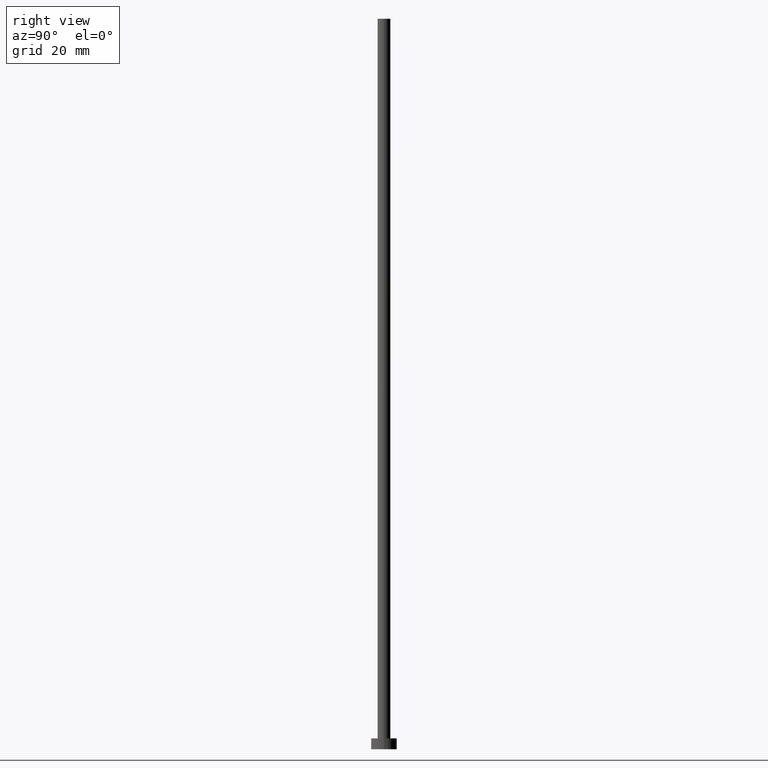
[diagram: clean part render]
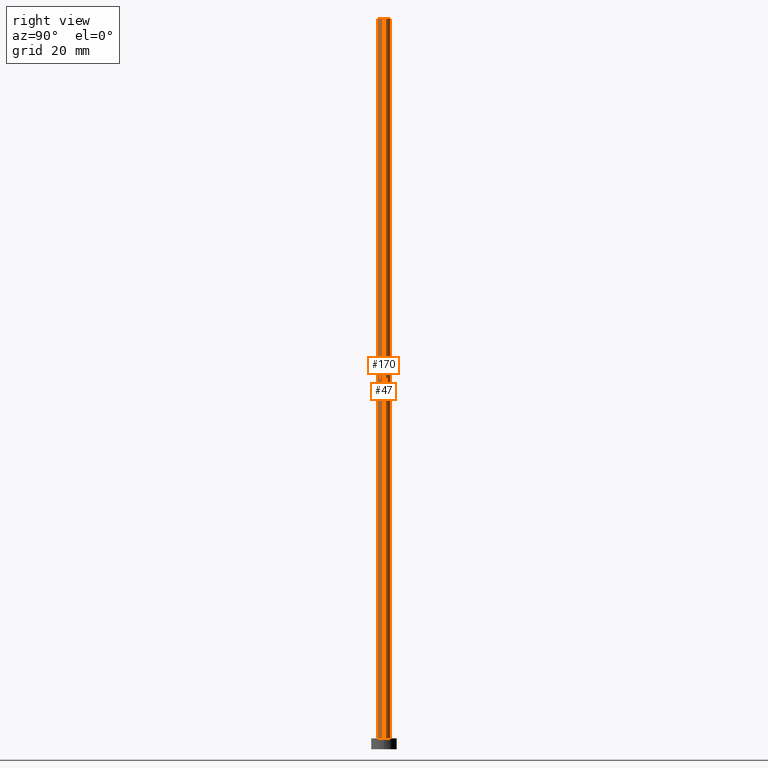
[diagram: same view with one multi-face feature highlighted, each face labeled with its STEP entity id]
A machine part, right view. The highlighted faces form ONE feature: a constant-radius fillet chain: 2 tangent blend faces with common blend radius 1.75 mm. The faces share edges in the B-rep.
Their STEP definitions:
[1] entity #170 (Cylinder):
#10 = ORIENTED_EDGE ( 'NONE', *, *, #207, .T. ) ;
#11 = VECTOR ( 'NONE', #69, 1000.000000000000000 ) ;
#23 = EDGE_CURVE ( 'NONE', #82, #142, #133, .T. ) ;
#32 = ORIENTED_EDGE ( 'NONE', *, *, #23, .T. ) ;
#33 = VERTEX_POINT ( 'NONE', #176 ) ;
#37 = CARTESIAN_POINT ( 'NONE',  ( 1.750000000000000000, 2.143131898507868297E-16, 200.0000000000000000 ) ) ;
#39 = DIRECTION ( 'NONE',  ( -1.000000000000000000, 0.000000000000000000, 0.000000000000000000 ) ) ;
#41 = CIRCLE ( 'NONE', #201, 1.750000000000000000 ) ;
#53 = DIRECTION ( 'NONE',  ( 0.000000000000000000, 0.000000000000000000, 1.000000000000000000 ) ) ;
#54 = LINE ( 'NONE', #110, #11 ) ;
#63 = ORIENTED_EDGE ( 'NONE', *, *, #175, .F. ) ;
#69 = DIRECTION ( 'NONE',  ( -0.000000000000000000, -0.000000000000000000, -1.000000000000000000 ) ) ;
#70 = CARTESIAN_POINT ( 'NONE',  ( 0.000000000000000000, 0.000000000000000000, 200.0000000000000000 ) ) ;
#71 = CARTESIAN_POINT ( 'NONE',  ( -1.750000000000000000, 0.000000000000000000, 3.000000000000000000 ) ) ;
#75 = DIRECTION ( 'NONE',  ( 0.000000000000000000, 0.000000000000000000, 1.000000000000000000 ) ) ;
#82 = VERTEX_POINT ( 'NONE', #112 ) ;
#108 = ORIENTED_EDGE ( 'NONE', *, *, #160, .F. ) ;
#109 = DIRECTION ( 'NONE',  ( 1.000000000000000000, 0.000000000000000000, 0.000000000000000000 ) ) ;
#110 = CARTESIAN_POINT ( 'NONE',  ( 1.750000000000000000, 2.143131898507868297E-16, 200.0000000000000000 ) ) ;
#112 = CARTESIAN_POINT ( 'NONE',  ( -1.750000000000000000, 0.000000000000000000, 200.0000000000000000 ) ) ;
#124 = CIRCLE ( 'NONE', #163, 1.750000000000000000 ) ;
#127 = CARTESIAN_POINT ( 'NONE',  ( 0.000000000000000000, 0.000000000000000000, 3.000000000000000000 ) ) ;
#130 = DIRECTION ( 'NONE',  ( -0.000000000000000000, -0.000000000000000000, -1.000000000000000000 ) ) ;
#131 = DIRECTION ( 'NONE',  ( -0.000000000000000000, -0.000000000000000000, -1.000000000000000000 ) ) ;
#132 = DIRECTION ( 'NONE',  ( 1.000000000000000000, 0.000000000000000000, 0.000000000000000000 ) ) ;
#133 = LINE ( 'NONE', #196, #230 ) ;
#142 = VERTEX_POINT ( 'NONE', #71 ) ;
#157 = CYLINDRICAL_SURFACE ( 'NONE', #199, 1.750000000000000000 ) ;
#160 = EDGE_CURVE ( 'NONE', #82, #167, #124, .T. ) ;
#163 = AXIS2_PLACEMENT_3D ( 'NONE', #70, #75, #132 ) ;
#167 = VERTEX_POINT ( 'NONE', #37 ) ;
#170 = ADVANCED_FACE ( 'NONE', ( #231 ), #157, .T. ) ;
#175 = EDGE_CURVE ( 'NONE', #167, #33, #54, .T. ) ;
#176 = CARTESIAN_POINT ( 'NONE',  ( 1.750000000000000000, 2.143131898507868297E-16, 3.000000000000000000 ) ) ;
#196 = CARTESIAN_POINT ( 'NONE',  ( -1.750000000000000000, 0.000000000000000000, 200.0000000000000000 ) ) ;
#199 = AXIS2_PLACEMENT_3D ( 'NONE', #212, #131, #39 ) ;
#201 = AXIS2_PLACEMENT_3D ( 'NONE', #127, #53, #109 ) ;
#204 = EDGE_LOOP ( 'NONE', ( #63, #108, #32, #10 ) ) ;
#207 = EDGE_CURVE ( 'NONE', #142, #33, #41, .T. ) ;
#212 = CARTESIAN_POINT ( 'NONE',  ( 0.000000000000000000, 0.000000000000000000, 200.0000000000000000 ) ) ;
#230 = VECTOR ( 'NONE', #130, 1000.000000000000000 ) ;
#231 = FACE_OUTER_BOUND ( 'NONE', #204, .T. ) ;
[2] entity #47 (Cylinder):
#3 = AXIS2_PLACEMENT_3D ( 'NONE', #97, #251, #191 ) ;
#11 = VECTOR ( 'NONE', #69, 1000.000000000000000 ) ;
#23 = EDGE_CURVE ( 'NONE', #82, #142, #133, .T. ) ;
#26 = ORIENTED_EDGE ( 'NONE', *, *, #137, .F. ) ;
#29 = AXIS2_PLACEMENT_3D ( 'NONE', #233, #174, #193 ) ;
#33 = VERTEX_POINT ( 'NONE', #176 ) ;
#36 = DIRECTION ( 'NONE',  ( 0.000000000000000000, 0.000000000000000000, 1.000000000000000000 ) ) ;
#37 = CARTESIAN_POINT ( 'NONE',  ( 1.750000000000000000, 2.143131898507868297E-16, 200.0000000000000000 ) ) ;
#40 = CIRCLE ( 'NONE', #235, 1.750000000000000000 ) ;
#47 = ADVANCED_FACE ( 'NONE', ( #52 ), #173, .T. ) ;
#51 = EDGE_CURVE ( 'NONE', #33, #142, #40, .T. ) ;
#52 = FACE_OUTER_BOUND ( 'NONE', #89, .T. ) ;
#54 = LINE ( 'NONE', #110, #11 ) ;
#55 = CARTESIAN_POINT ( 'NONE',  ( 0.000000000000000000, 0.000000000000000000, 3.000000000000000000 ) ) ;
#69 = DIRECTION ( 'NONE',  ( -0.000000000000000000, -0.000000000000000000, -1.000000000000000000 ) ) ;
#71 = CARTESIAN_POINT ( 'NONE',  ( -1.750000000000000000, 0.000000000000000000, 3.000000000000000000 ) ) ;
#82 = VERTEX_POINT ( 'NONE', #112 ) ;
#89 = EDGE_LOOP ( 'NONE', ( #26, #122, #227, #90 ) ) ;
#90 = ORIENTED_EDGE ( 'NONE', *, *, #23, .F. ) ;
#97 = CARTESIAN_POINT ( 'NONE',  ( 0.000000000000000000, 0.000000000000000000, 200.0000000000000000 ) ) ;
#110 = CARTESIAN_POINT ( 'NONE',  ( 1.750000000000000000, 2.143131898507868297E-16, 200.0000000000000000 ) ) ;
#112 = CARTESIAN_POINT ( 'NONE',  ( -1.750000000000000000, 0.000000000000000000, 200.0000000000000000 ) ) ;
#122 = ORIENTED_EDGE ( 'NONE', *, *, #175, .T. ) ;
#130 = DIRECTION ( 'NONE',  ( -0.000000000000000000, -0.000000000000000000, -1.000000000000000000 ) ) ;
#133 = LINE ( 'NONE', #196, #230 ) ;
#136 = CIRCLE ( 'NONE', #29, 1.750000000000000000 ) ;
#137 = EDGE_CURVE ( 'NONE', #167, #82, #136, .T. ) ;
#142 = VERTEX_POINT ( 'NONE', #71 ) ;
#167 = VERTEX_POINT ( 'NONE', #37 ) ;
#173 = CYLINDRICAL_SURFACE ( 'NONE', #3, 1.750000000000000000 ) ;
#174 = DIRECTION ( 'NONE',  ( 0.000000000000000000, 0.000000000000000000, 1.000000000000000000 ) ) ;
#175 = EDGE_CURVE ( 'NONE', #167, #33, #54, .T. ) ;
#176 = CARTESIAN_POINT ( 'NONE',  ( 1.750000000000000000, 2.143131898507868297E-16, 3.000000000000000000 ) ) ;
#191 = DIRECTION ( 'NONE',  ( -1.000000000000000000, 0.000000000000000000, 0.000000000000000000 ) ) ;
#193 = DIRECTION ( 'NONE',  ( 1.000000000000000000, 0.000000000000000000, 0.000000000000000000 ) ) ;
#195 = DIRECTION ( 'NONE',  ( 1.000000000000000000, 0.000000000000000000, 0.000000000000000000 ) ) ;
#196 = CARTESIAN_POINT ( 'NONE',  ( -1.750000000000000000, 0.000000000000000000, 200.0000000000000000 ) ) ;
#227 = ORIENTED_EDGE ( 'NONE', *, *, #51, .T. ) ;
#230 = VECTOR ( 'NONE', #130, 1000.000000000000000 ) ;
#233 = CARTESIAN_POINT ( 'NONE',  ( 0.000000000000000000, 0.000000000000000000, 200.0000000000000000 ) ) ;
#235 = AXIS2_PLACEMENT_3D ( 'NONE', #55, #36, #195 ) ;
#251 = DIRECTION ( 'NONE',  ( -0.000000000000000000, -0.000000000000000000, -1.000000000000000000 ) ) ;